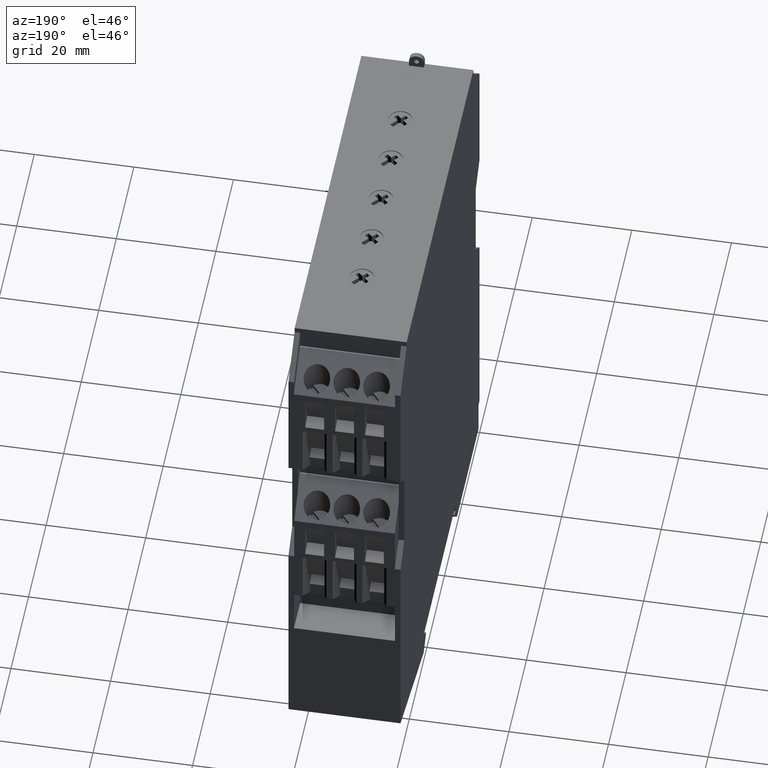
[diagram: clean part render]
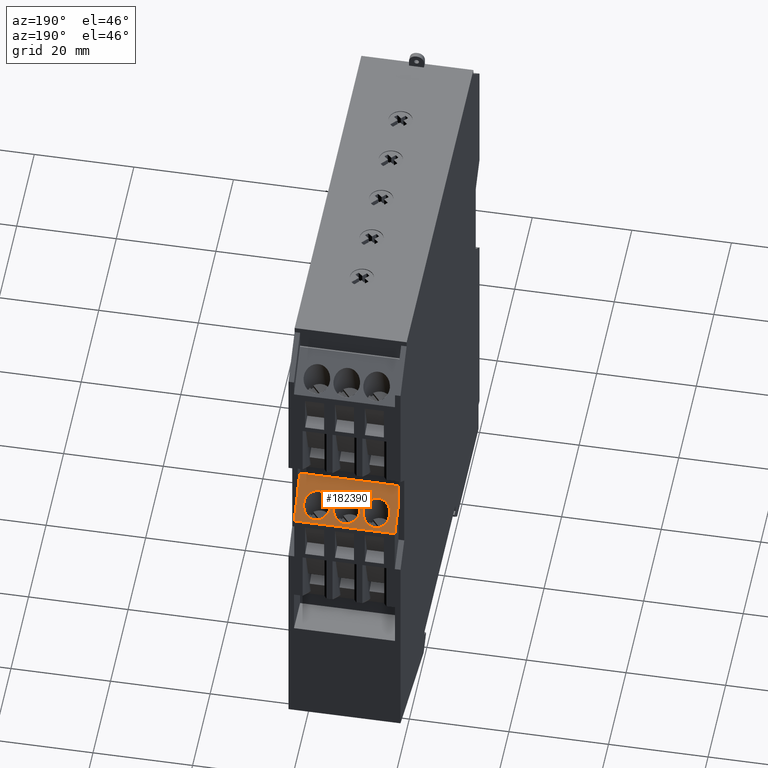
[diagram: same view with one face highlighted and labeled with its STEP entity id]
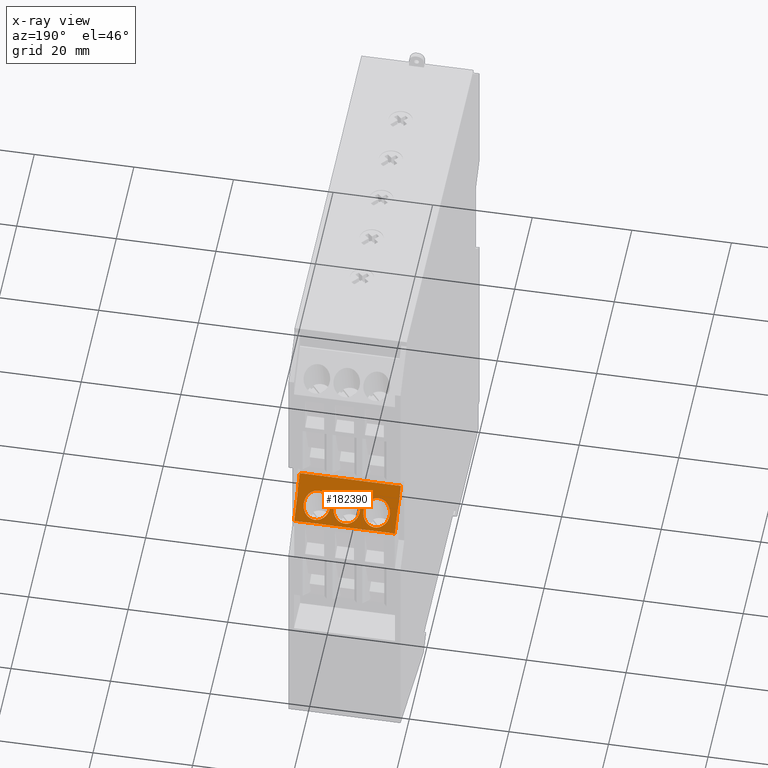
[diagram: x-ray of the same camera — body ghosted, the highlighted face saturated]
A machine part, auxiliary view. The second image highlights one B-rep face of the part: STEP entity #182390.
The next image is the same camera in x-ray: the body ghosted, the highlighted face saturated — about 0% of this face is hidden behind the body in this view.
In plain terms, the highlighted planar face has unit normal (0, -0.7071, -0.7071).
Its self-contained STEP definition (entity closure, byte-faithful):
#41650=CARTESIAN_POINT('',(-10.0893993066638,37.54876394652,
120.397547264393));
#41660=VERTEX_POINT('',#41650);
#41690=CARTESIAN_POINT('',(-10.0893993066638,157.946311210905,0.));
#41700=DIRECTION('',(0.,0.707106781186524,-0.707106781186571));
#41710=VECTOR('',#41700,1.);
#41720=LINE('',#41690,#41710);
#41730=CARTESIAN_POINT('',(-10.0893993066638,35.122081202304,
122.824230008609));
#41740=VERTEX_POINT('',#41730);
#41750=EDGE_CURVE('',#41740,#41660,#41720,.T.);
#58530=CARTESIAN_POINT('',(10.1606006933362,41.8487639465253,
116.097547264387));
#58540=VERTEX_POINT('',#58530);
#58570=CARTESIAN_POINT('',(0.121201386672368,41.8487639465254,
116.097547264387));
#58580=DIRECTION('',(1.,-1.7830043539703E-18,3.46944695195361E-18));
#58590=VECTOR('',#58580,1.);
#58600=LINE('',#58570,#58590);
#58610=CARTESIAN_POINT('',(-10.0393993066638,41.8487639465219,
116.09754726439));
#58620=VERTEX_POINT('',#58610);
#58630=EDGE_CURVE('',#58620,#58540,#58600,.T.);
#180760=CARTESIAN_POINT('',(-10.0393993066638,41.8487639465253,
116.097547264387));
#180770=DIRECTION('',(-3.71404393627098E-18,-0.707106781186524,
0.707106781186571));
#180780=VECTOR('',#180770,1.);
#180790=LINE('',#180760,#180780);
#180800=CARTESIAN_POINT('',(-10.0393993066638,37.54876394652,
120.397547264393));
#180810=VERTEX_POINT('',#180800);
#180820=EDGE_CURVE('',#58620,#180810,#180790,.T.);
#181100=CARTESIAN_POINT('',(0.,37.5487639465201,120.397547264393));
#181110=DIRECTION('',(1.,0.,0.));
#181120=VECTOR('',#181110,1.);
#181130=LINE('',#181100,#181120);
#181140=EDGE_CURVE('',#41660,#180810,#181130,.T.);
#181410=CARTESIAN_POINT('',(-10.0393993066638,41.8487639465254,
116.097547264387));
#181420=DIRECTION('',(1.19249499711573E-18,-0.707106781186571,
-0.707106781186524));
#181430=DIRECTION('',(3.71404393627098E-18,0.707106781186524,
-0.707106781186571));
#181440=AXIS2_PLACEMENT_3D('',#181410,#181420,#181430);
#181450=PLANE('',#181440);
#181460=CARTESIAN_POINT('',(0.0606006933361805,39.2816475401181,
118.664663670794));
#181470=DIRECTION('',(1.19249499711573E-18,-0.707106781186571,
-0.707106781186524));
#181480=DIRECTION('',(-6.82326007369975E-17,0.707106781186524,
-0.707106781186571));
#181490=AXIS2_PLACEMENT_3D('',#181460,#181470,#181480);
#181500=ELLIPSE('',#181490,2.9239514852506,2.65);
#181510=CARTESIAN_POINT('',(2.71060069333618,39.2816475401181,
118.664663670794));
#181520=VERTEX_POINT('',#181510);
#181530=CARTESIAN_POINT('',(-2.58939930666382,39.2816475401181,
118.664663670794));
#181540=VERTEX_POINT('',#181530);
#181550=EDGE_CURVE('',#181520,#181540,#181500,.T.);
#181560=ORIENTED_EDGE('',*,*,#181550,.T.);
#181570=CARTESIAN_POINT('',(-2.07460537442271,40.5061969764323,
117.44011423448));
#181580=VERTEX_POINT('',#181570);
#181590=EDGE_CURVE('',#181580,#181520,#181500,.T.);
#181600=ORIENTED_EDGE('',*,*,#181590,.T.);
#181610=EDGE_CURVE('',#181540,#181580,#181500,.T.);
#181620=ORIENTED_EDGE('',*,*,#181610,.T.);
#181630=EDGE_LOOP('',(#181620,#181600,#181560));
#181640=FACE_BOUND('',#181630,.T.);
#181650=CARTESIAN_POINT('',(6.06060069333618,39.2816475401181,
118.664663670794));
#181660=DIRECTION('',(1.19249499711573E-18,-0.707106781186571,
-0.707106781186524));
#181670=DIRECTION('',(-6.82326007369974E-17,0.707106781186524,
-0.707106781186571));
#181680=AXIS2_PLACEMENT_3D('',#181650,#181660,#181670);
#181690=ELLIPSE('',#181680,2.9239514852506,2.65);
#181700=CARTESIAN_POINT('',(8.71060069333618,39.2816475401181,
118.664663670794));
#181710=VERTEX_POINT('',#181700);
#181720=CARTESIAN_POINT('',(3.41060069333618,39.2816475401181,
118.664663670794));
#181730=VERTEX_POINT('',#181720);
#181740=EDGE_CURVE('',#181710,#181730,#181690,.T.);
#181750=ORIENTED_EDGE('',*,*,#181740,.T.);
#181760=CARTESIAN_POINT('',(4.49108005052652,40.9475481440173,
116.998763066895));
#181770=VERTEX_POINT('',#181760);
#181780=EDGE_CURVE('',#181770,#181710,#181690,.T.);
#181790=ORIENTED_EDGE('',*,*,#181780,.T.);
#181800=EDGE_CURVE('',#181730,#181770,#181690,.T.);
#181810=ORIENTED_EDGE('',*,*,#181800,.T.);
#181820=EDGE_LOOP('',(#181810,#181790,#181750));
#181830=FACE_BOUND('',#181820,.T.);
#181840=CARTESIAN_POINT('',(-5.93939930666382,39.2816475401181,
118.664663670794));
#181850=DIRECTION('',(1.19249499711573E-18,-0.707106781186571,
-0.707106781186524));
#181860=DIRECTION('',(-6.82326007369975E-17,0.707106781186524,
-0.707106781186571));
#181870=AXIS2_PLACEMENT_3D('',#181840,#181850,#181860);
#181880=ELLIPSE('',#181870,2.9239514852506,2.65);
#181890=CARTESIAN_POINT('',(-8.58939930666382,39.2816475401181,
118.664663670794));
#181900=VERTEX_POINT('',#181890);
#181910=CARTESIAN_POINT('',(-3.28939930666382,39.2816475401181,
118.664663670794));
#181920=VERTEX_POINT('',#181910);
#181930=EDGE_CURVE('',#181900,#181920,#181880,.T.);
#181940=ORIENTED_EDGE('',*,*,#181930,.T.);
#181950=CARTESIAN_POINT('',(-3.80419323890493,38.0570981038039,
119.889213107109));
#181960=VERTEX_POINT('',#181950);
#181970=EDGE_CURVE('',#181960,#181900,#181880,.T.);
#181980=ORIENTED_EDGE('',*,*,#181970,.T.);
#181990=EDGE_CURVE('',#181920,#181960,#181880,.T.);
#182000=ORIENTED_EDGE('',*,*,#181990,.T.);
#182010=EDGE_LOOP('',(#182000,#181980,#181940));
#182020=FACE_BOUND('',#182010,.T.);
#182030=ORIENTED_EDGE('',*,*,#180820,.T.);
#182040=ORIENTED_EDGE('',*,*,#58630,.F.);
#182050=CARTESIAN_POINT('',(10.1606006933362,157.946311210905,0.));
#182060=DIRECTION('',(0.,0.707106781186524,-0.707106781186571));
#182070=VECTOR('',#182060,1.);
#182080=LINE('',#182050,#182070);
#182090=CARTESIAN_POINT('',(10.1606006933362,37.54876394652,
120.397547264393));
#182100=VERTEX_POINT('',#182090);
#182110=EDGE_CURVE('',#182100,#58540,#182080,.T.);
#182120=ORIENTED_EDGE('',*,*,#182110,.T.);
#182130=CARTESIAN_POINT('',(0.,37.54876394652,120.397547264393));
#182140=DIRECTION('',(-1.,0.,-1.68644259798319E-18));
#182150=VECTOR('',#182140,1.);
#182160=LINE('',#182130,#182150);
#182170=CARTESIAN_POINT('',(10.2106006933362,37.54876394652,
120.397547264393));
#182180=VERTEX_POINT('',#182170);
#182190=EDGE_CURVE('',#182180,#182100,#182160,.T.);
#182200=ORIENTED_EDGE('',*,*,#182190,.T.);
#182210=CARTESIAN_POINT('',(10.2106006933362,157.946311210905,0.));
#182220=DIRECTION('',(0.,0.707106781186524,-0.707106781186571));
#182230=VECTOR('',#182220,1.);
#182240=LINE('',#182210,#182230);
#182250=CARTESIAN_POINT('',(10.2106006933362,35.122081202304,
122.824230008609));
#182260=VERTEX_POINT('',#182250);
#182270=EDGE_CURVE('',#182260,#182180,#182240,.T.);
#182280=ORIENTED_EDGE('',*,*,#182270,.T.);
#182290=CARTESIAN_POINT('',(0.,35.122081202304,122.824230008609));
#182300=DIRECTION('',(-1.,1.7830043539703E-18,-3.46944695195361E-18));
#182310=VECTOR('',#182300,1.);
#182320=LINE('',#182290,#182310);
#182330=EDGE_CURVE('',#182260,#41740,#182320,.T.);
#182340=ORIENTED_EDGE('',*,*,#182330,.F.);
#182350=ORIENTED_EDGE('',*,*,#41750,.F.);
#182360=ORIENTED_EDGE('',*,*,#181140,.F.);
#182370=EDGE_LOOP('',(#182360,#182350,#182340,#182280,#182200,#182120,
#182040,#182030));
#182380=FACE_OUTER_BOUND('',#182370,.T.);
#182390=ADVANCED_FACE('',(#181640,#181830,#182020,#182380),#181450,.F.);